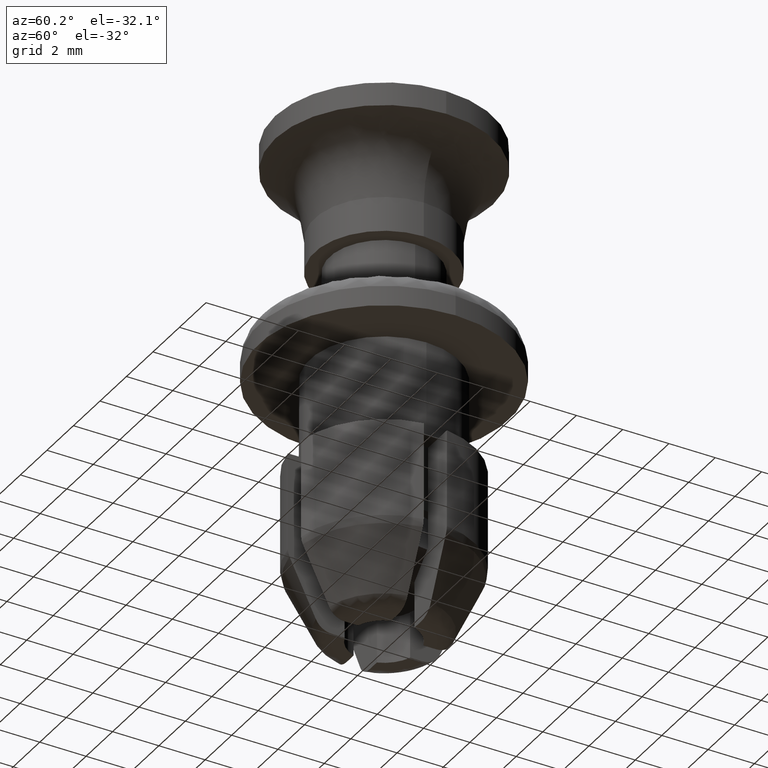
[diagram: clean part render]
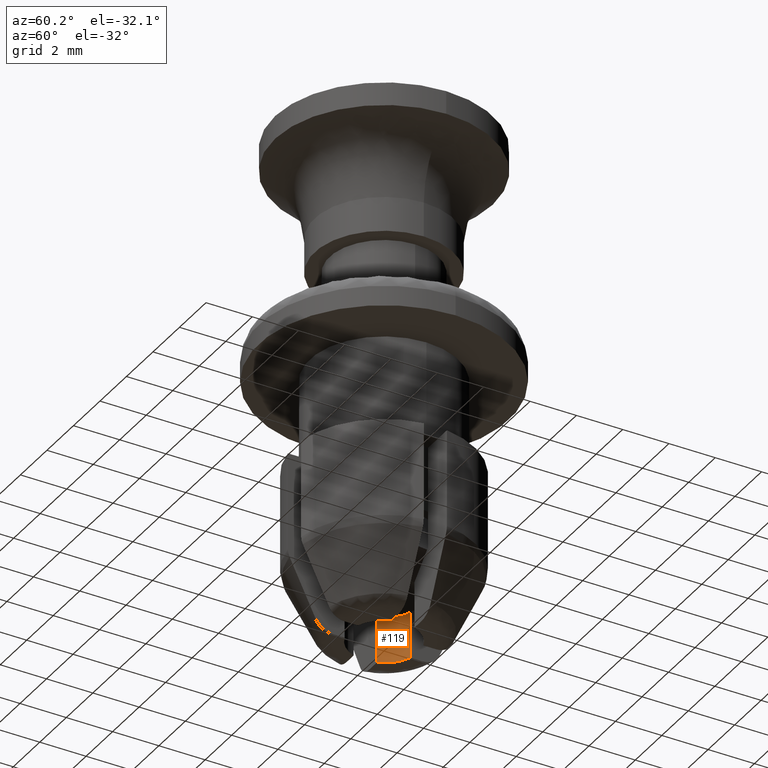
[diagram: same view with one face highlighted and labeled with its STEP entity id]
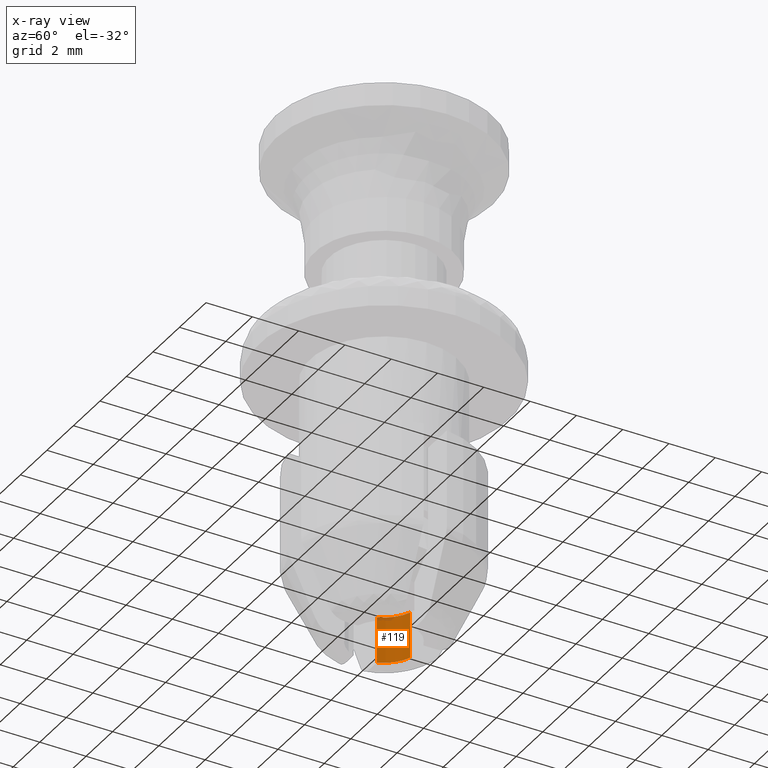
[diagram: x-ray of the same camera — body ghosted, the highlighted face saturated]
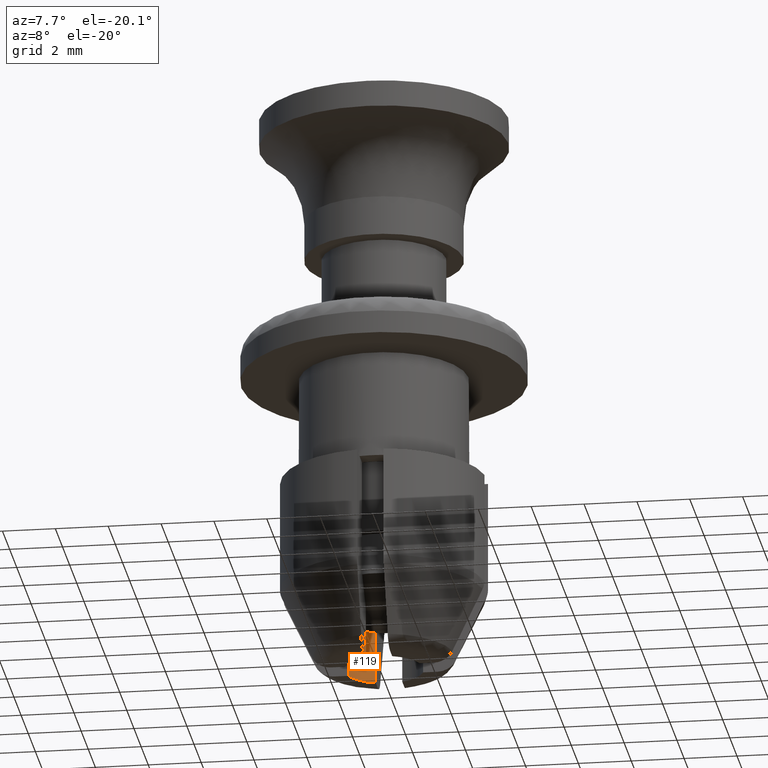
[diagram: same view with one face highlighted and labeled with its STEP entity id]
A machine part, auxiliary view. The second image highlights one B-rep face of the part: STEP entity #119.
The next image is the same camera in x-ray: the body ghosted, the highlighted face saturated — about 3% of this face is hidden behind the body in this view.
A second angle (auxiliary view) of the same face is appended — the face is thin or edge-on in the first view.
In plain terms, the highlighted cylindrical surface (partial cylindrical patch) has radius 1.5 mm, axis along (-0, -0, -1).
Its self-contained STEP definition (entity closure, byte-faithful):
#119=ADVANCED_FACE('',(#263),#262,.F.);
#262=CYLINDRICAL_SURFACE('',#1075,1.50000000000E+00);
#263=FACE_OUTER_BOUND('',#1076,.T.);
#1072=CARTESIAN_POINT('',(-1.97215226305E-31,0.00000000000E+00,-1.00610000000E+03));
#1073=DIRECTION('',(-0.00000000000E+00,-0.00000000000E+00,-1.00000000000E+00));
#1074=DIRECTION('',(-1.00000000000E+00,-0.00000000000E+00,-0.00000000000E+00));
#1075=AXIS2_PLACEMENT_3D('',#1072,#1073,#1074);
#1076=EDGE_LOOP('',(#1648,#1649,#1650,#1651));
#1648=ORIENTED_EDGE('',*,*,#2040,.F.);
#1649=ORIENTED_EDGE('',*,*,#2041,.F.);
#1650=ORIENTED_EDGE('',*,*,#2042,.F.);
#1651=ORIENTED_EDGE('',*,*,#2043,.F.);
#2040=EDGE_CURVE('',#2440,#2441,#2442,.T.);
#2041=EDGE_CURVE('',#2448,#2440,#2449,.T.);
#2042=EDGE_CURVE('',#2455,#2448,#2456,.T.);
#2043=EDGE_CURVE('',#2441,#2455,#2462,.T.);
#2440=VERTEX_POINT('',#3685);
#2441=VERTEX_POINT('',#3686);
#2442=CIRCLE('',#3690,1.50000000000E+00);
#2448=VERTEX_POINT('',#3691);
#2449=LINE('',#3692,#3693);
#2455=VERTEX_POINT('',#3695);
#2456=CIRCLE('',#3699,1.50000000000E+00);
#2462=LINE('',#3700,#3701);
#3685=CARTESIAN_POINT('',(-1.41421356237E+00,5.00000000000E-01,-1.15003633768E+01));
#3686=CARTESIAN_POINT('',(-5.00000000000E-01,1.41421356237E+00,-1.15003633768E+01));
#3687=CARTESIAN_POINT('',(0.00000000000E+00,0.00000000000E+00,-1.15003633768E+01));
#3688=DIRECTION('',(0.00000000000E+00,0.00000000000E+00,-1.00000000000E+00));
#3689=DIRECTION('',(1.00000000000E+00,-0.00000000000E+00,-0.00000000000E+00));
#3690=AXIS2_PLACEMENT_3D('',#3687,#3688,#3689);
#3691=CARTESIAN_POINT('',(-1.41421356237E+00,5.00000000000E-01,-1.35003000000E+01));
#3692=CARTESIAN_POINT('',(-1.41421356237E+00,5.00000000000E-01,-1.35003000000E+01));
#3693=VECTOR('',#3694,1.99993662322E+00);
#3694=DIRECTION('',(0.00000000000E+00,0.00000000000E+00,1.00000000000E+00));
#3695=CARTESIAN_POINT('',(-5.00000000000E-01,1.41421356237E+00,-1.35003000000E+01));
#3696=CARTESIAN_POINT('',(-1.97215226305E-31,0.00000000000E+00,-1.35003000000E+01));
#3697=DIRECTION('',(0.00000000000E+00,-0.00000000000E+00,1.00000000000E+00));
#3698=DIRECTION('',(1.00000000000E+00,-0.00000000000E+00,-0.00000000000E+00));
#3699=AXIS2_PLACEMENT_3D('',#3696,#3697,#3698);
#3700=CARTESIAN_POINT('',(-5.00000000000E-01,1.41421356237E+00,-1.15003633768E+01));
#3701=VECTOR('',#3702,1.99993662322E+00);
#3702=DIRECTION('',(0.00000000000E+00,0.00000000000E+00,-1.00000000000E+00));